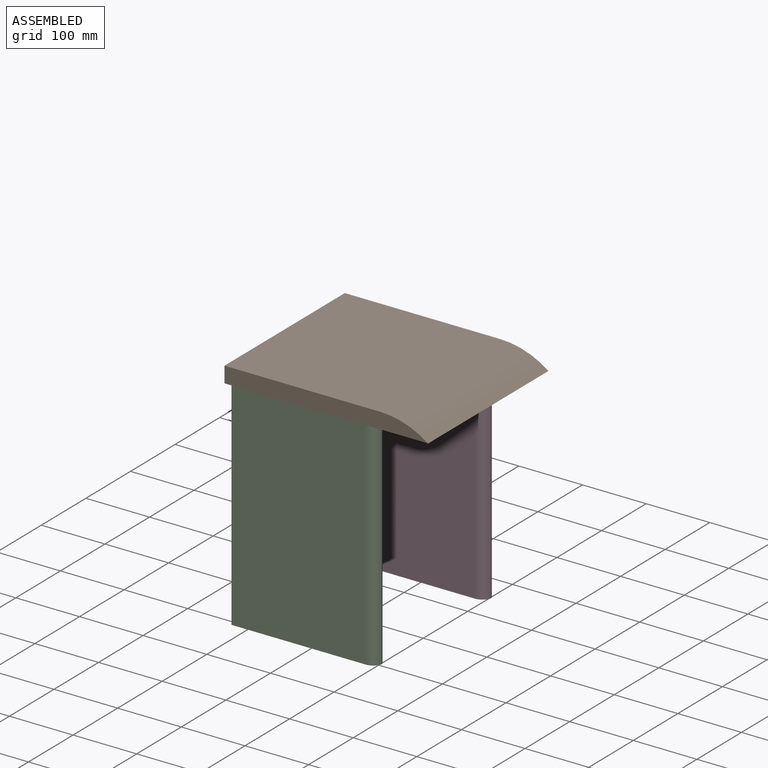
[diagram: assembled view]
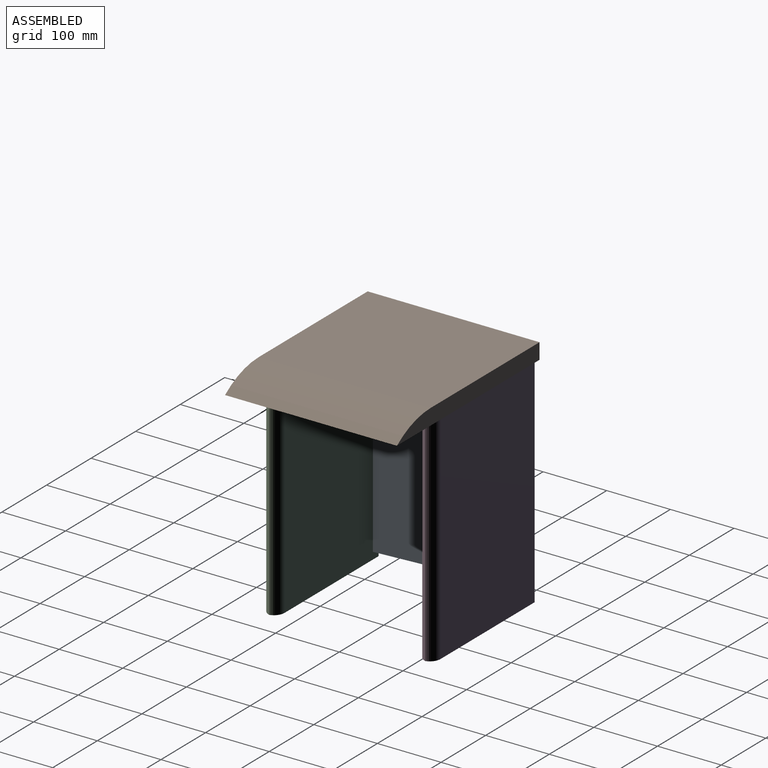
[diagram: assembled view, second angle]
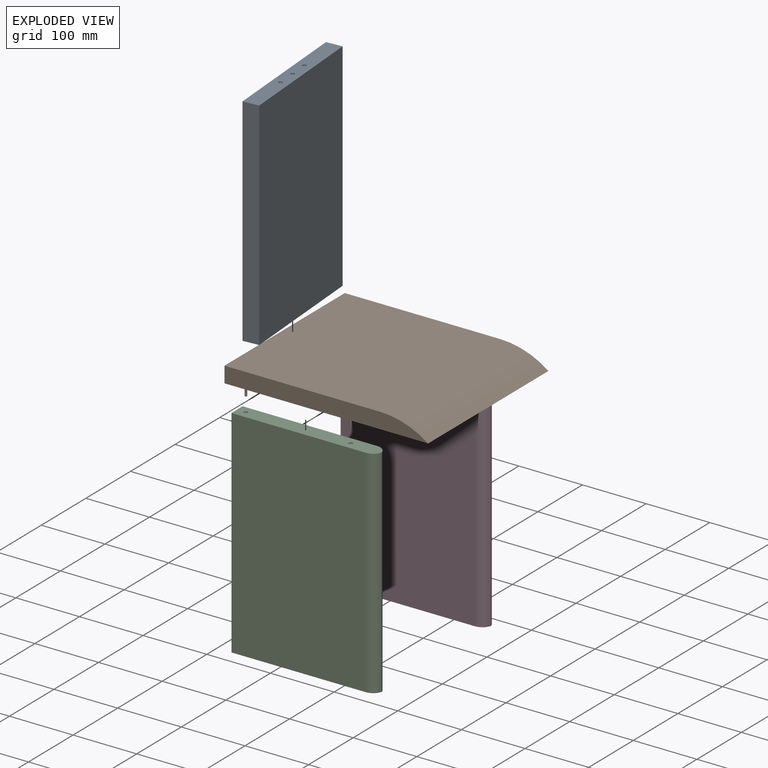
[diagram: exploded view]
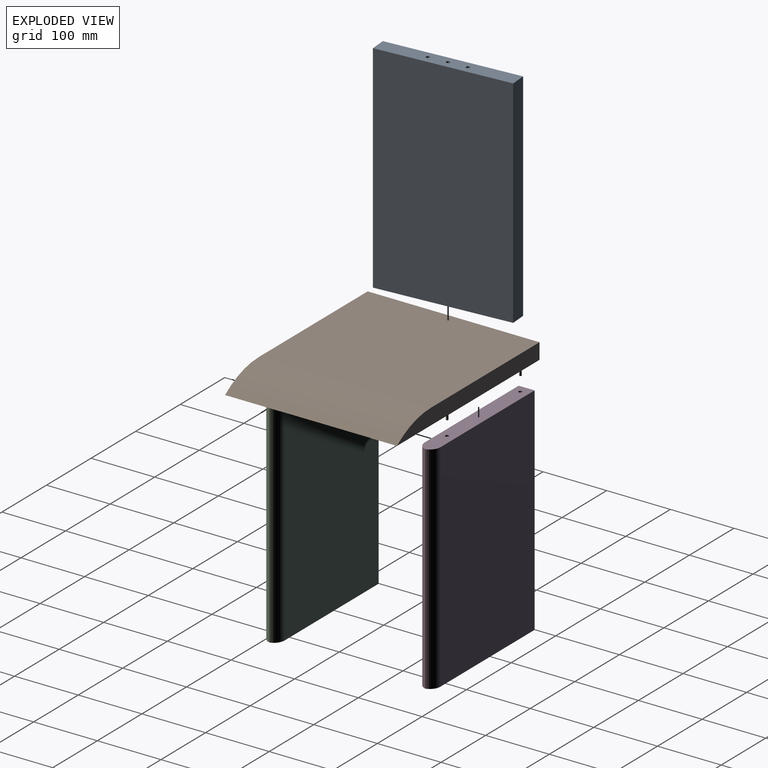
[diagram: exploded view, second angle]
ASSEMBLY  parts=4 mates=3
PART A: 18 faces, bbox 210x25x340 mm
  f0: plane 210x25mm, normal (0,0,1), area 5165.2mm2, adj f1,f3,f4,f5,f6,f8,f10
  f1: plane 340x25mm, normal (-1,0,0), area 8500mm2, adj f0,f2,f4,f5
  f2: plane 210x25mm, normal (0,0,-1), area 5250mm2, adj f1,f3,f4,f5
  f3: plane 340x25mm, normal (1,0,0), area 8500mm2, adj f0,f2,f4,f5
  f4: plane 340x210mm, normal (0,-1,0), area 71400mm2, adj f0,f1,f2,f3
  f5: plane 340x210mm, normal (0,1,0), area 71400mm2, adj f0,f1,f2,f3
  f6: cylinder r=3mm len=6mm, axis (0,0,1), area 37.7mm2, adj f0,f7
  f7: plane 6x6mm, normal (0,0,1), area 18.7mm2, adj f6,f13
  f8: cylinder r=3mm len=6mm, axis (0,0,1), area 37.7mm2, adj f0,f9
  f9: plane 6x6mm, normal (0,0,1), area 18.7mm2, adj f8,f15
  f10: cylinder r=3mm len=6mm, axis (0,0,1), area 37.7mm2, adj f0,f11
  f11: plane 6x6mm, normal (0,0,1), area 18.7mm2, adj f10,f17
  f12: plane 3.5x3.5mm, normal (0,0,1), area 9.6mm2, adj f13
  f13: cylinder r=1.75mm len=14mm, axis (0,0,1), area 153.9mm2, adj f7,f12
  f14: plane 3.5x3.5mm, normal (0,0,1), area 9.6mm2, adj f15
  f15: cylinder r=1.75mm len=14mm, axis (0,0,1), area 153.9mm2, adj f9,f14
  f16: plane 3.5x3.5mm, normal (0,0,1), area 9.6mm2, adj f17
  f17: cylinder r=1.75mm len=14mm, axis (0,0,1), area 153.9mm2, adj f11,f16
PART B: 16 faces, bbox 320x270x41 mm
  f0: plane 320x25mm, normal (0,1,0), area 7393.9mm2, adj f1,f3,f4,f5
  f1: plane 270x25mm, normal (-1,0,0), area 6750mm2, adj f0,f2,f3,f4
  f2: plane 320x25mm, normal (0,-1,0), area 7393.9mm2, adj f1,f3,f4,f5
  f3: plane 270x244.02mm, normal (0,0,1), area 65885.9mm2, adj f0,f1,f2,f5
  f4: plane 320x270mm, normal (0,0,-1), area 86351.9mm2, adj f0,f1,f2,f5,f6,f8,f10,f12
  f5: cylinder r=127.95mm len=270mm, axis (0,-1,0), area 21964.1mm2, adj f0,f2,f3,f4
  f6: cylinder r=1.75mm len=16mm, axis (0,0,1), area 175.9mm2, adj f4,f7
  f7: plane 3.5x3.5mm, normal (0,0,-1), area 9.6mm2, adj f6
  f8: cylinder r=1.75mm len=16mm, axis (0,0,1), area 175.9mm2, adj f4,f9
  f9: plane 3.5x3.5mm, normal (0,0,-1), area 9.6mm2, adj f8
  f10: cylinder r=1.75mm len=16mm, axis (0,0,1), area 175.9mm2, adj f4,f11
  f11: plane 3.5x3.5mm, normal (0,0,-1), area 9.6mm2, adj f10
  f12: cylinder r=1.75mm len=16mm, axis (0,0,1), area 175.9mm2, adj f4,f13
  f13: plane 3.5x3.5mm, normal (0,0,-1), area 9.6mm2, adj f12
  f14: cylinder r=1.75mm len=16mm, axis (0,0,1), area 175.9mm2, adj f4,f15
  f15: plane 3.5x3.5mm, normal (0,0,-1), area 9.6mm2, adj f14
PART C: 15 faces, bbox 227.4x25x340 mm
  f0: plane 227.42x25mm, normal (0,0,1), area 5522.6mm2, adj f1,f3,f4,f5,f6,f7,f9
  f1: plane 340x25mm, normal (-1,0,0), area 8500mm2, adj f0,f2,f3,f4
  f2: plane 227.42x25mm, normal (0,0,-1), area 5579.1mm2, adj f1,f3,f4,f5,f6
  f3: plane 340x211.1mm, normal (0,-1,0), area 71774.2mm2, adj f0,f1,f2,f5
  f4: plane 340x211.1mm, normal (0,1,0), area 71774.2mm2, adj f0,f1,f2,f6
  f5: cylinder r=16.9mm len=340mm, axis (0,0,-1), area 7512.3mm2, adj f0,f2,f3,f6
  f6: cylinder r=16.9mm len=340mm, axis (0,0,1), area 7512.3mm2, adj f0,f2,f4,f5
  f7: cylinder r=3mm len=6mm, axis (0,0,1), area 37.7mm2, adj f0,f8
  f8: plane 6x6mm, normal (0,0,1), area 18.7mm2, adj f7,f12
  f9: cylinder r=3mm len=6mm, axis (0,0,1), area 37.7mm2, adj f0,f10
  f10: plane 6x6mm, normal (0,0,1), area 18.7mm2, adj f9,f14
  f11: plane 3.5x3.5mm, normal (0,0,1), area 9.6mm2, adj f12
  f12: cylinder r=1.75mm len=14mm, axis (0,0,1), area 153.9mm2, adj f8,f11
  f13: plane 3.5x3.5mm, normal (0,0,1), area 9.6mm2, adj f14
  f14: cylinder r=1.75mm len=14mm, axis (0,0,1), area 153.9mm2, adj f10,f13
PART D: same geometry as C
PLACE A rot(axis=(0,0,1),94.3deg) t=(-134.13,-248.97,-193.08)mm
PLACE B t=(14.18,-206.39,67.75)mm fixed
PLACE C t=(-37.78,-325.94,-2.96)mm
PLACE D t=(-37.78,-80.94,-2.96)mm
MATE revolute A.f10 <-> B.f14  axis (0,0,1) through (-124.06,-215.94,67.75)mm
MATE fastened B.f6 <-> C.f7  axis (0,0,-1) through (-111.56,-338.44,67.75)mm
MATE fastened D.f9 <-> B.f12  axis (0,0,1) through (52.86,-93.44,67.75)mm
